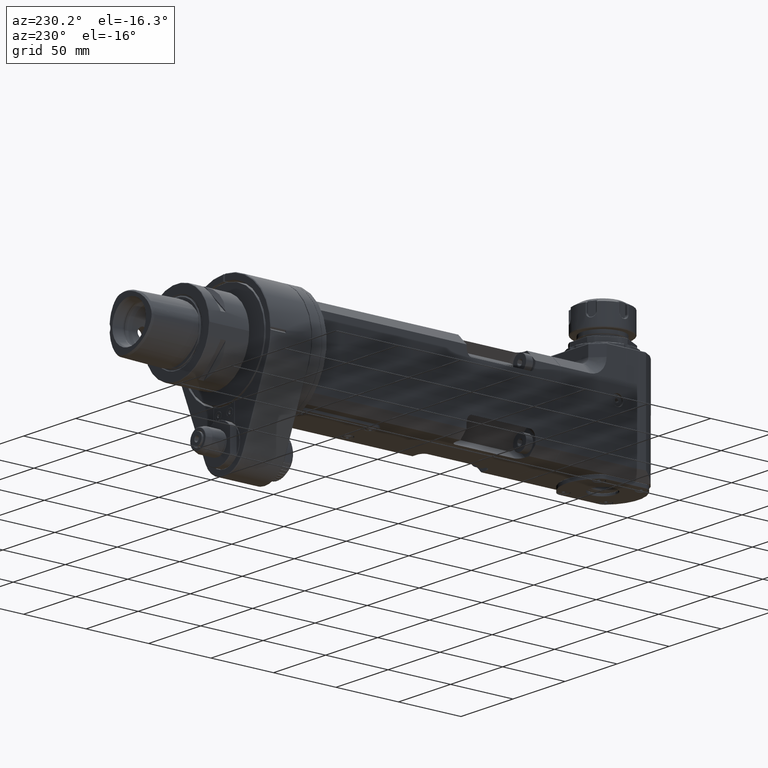
[diagram: clean part render]
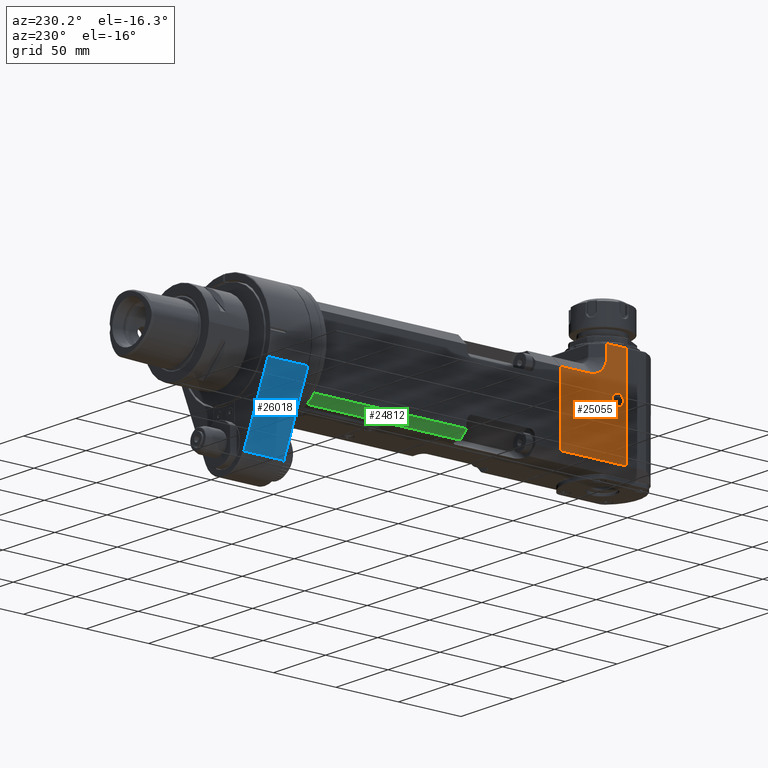
[diagram: same view with three faces highlighted in distinct colors, each labeled with its STEP entity id]
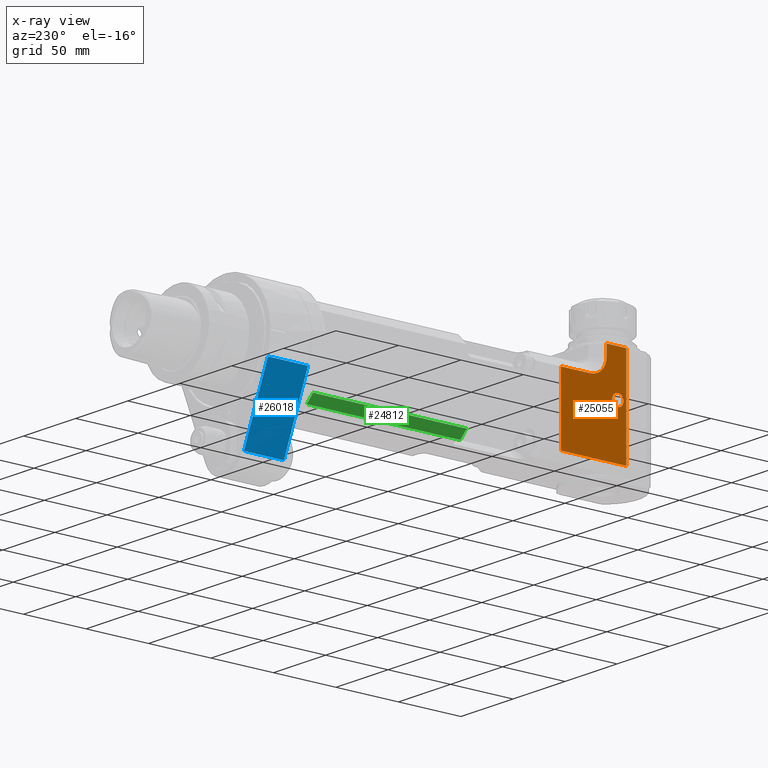
[diagram: x-ray of the same camera — body ghosted, the three highlighted faces saturated]
A machine part, auxiliary view with three faces highlighted in distinct colors.
The next image is the same camera in x-ray (body ghosted, the three faces saturated) — at least one of them is partly hidden behind the body in this view.
Their STEP definitions:

[orange] entity #25055 — the highlighted planar face has unit normal (-1, -0, 0).
#581=PLANE('',#26915);
#1453=FACE_BOUND('',#3898,.T.);
#2335=FACE_OUTER_BOUND('',#3897,.T.);
#3897=EDGE_LOOP('',(#18309,#18310,#18311,#18312,#18313,#18314,#18315));
#3898=EDGE_LOOP('',(#18316));
#5710=CIRCLE('',#26916,13.);
#5711=CIRCLE('',#26917,4.45);
#6726=LINE('',#37259,#8764);
#6906=LINE('',#38947,#8944);
#6920=LINE('',#38977,#8958);
#6921=LINE('',#38979,#8959);
#6922=LINE('',#38981,#8960);
#6923=LINE('',#38984,#8961);
#8764=VECTOR('',#29550,54.);
#8944=VECTOR('',#30344,15.8);
#8958=VECTOR('',#30362,52.3);
#8959=VECTOR('',#30365,75.5);
#8960=VECTOR('',#30366,8.5);
#8961=VECTOR('',#30369,23.5);
#10895=VERTEX_POINT('',#37254);
#10896=VERTEX_POINT('',#37258);
#11133=VERTEX_POINT('',#38944);
#11134=VERTEX_POINT('',#38946);
#11145=VERTEX_POINT('',#38975);
#11146=VERTEX_POINT('',#38980);
#11147=VERTEX_POINT('',#38982);
#11148=VERTEX_POINT('',#38985);
#13488=EDGE_CURVE('',#10895,#10896,#6726,.T.);
#13861=EDGE_CURVE('',#11133,#11134,#6906,.T.);
#13876=EDGE_CURVE('',#10895,#11145,#6920,.T.);
#13877=EDGE_CURVE('',#11145,#11134,#6921,.T.);
#13878=EDGE_CURVE('',#11133,#11146,#6922,.T.);
#13879=EDGE_CURVE('',#11146,#11147,#5710,.T.);
#13880=EDGE_CURVE('',#11147,#10896,#6923,.T.);
#13881=EDGE_CURVE('',#11148,#11148,#5711,.T.);
#18309=ORIENTED_EDGE('',*,*,#13488,.F.);
#18310=ORIENTED_EDGE('',*,*,#13876,.T.);
#18311=ORIENTED_EDGE('',*,*,#13877,.T.);
#18312=ORIENTED_EDGE('',*,*,#13861,.F.);
#18313=ORIENTED_EDGE('',*,*,#13878,.T.);
#18314=ORIENTED_EDGE('',*,*,#13879,.T.);
#18315=ORIENTED_EDGE('',*,*,#13880,.T.);
#18316=ORIENTED_EDGE('',*,*,#13881,.T.);
#25055=ADVANCED_FACE('',(#2335,#1453),#581,.T.);
#26915=AXIS2_PLACEMENT_3D('',#38978,#30363,#30364);
#26916=AXIS2_PLACEMENT_3D('',#38983,#30367,#30368);
#26917=AXIS2_PLACEMENT_3D('',#38986,#30370,#30371);
#29550=DIRECTION('',(0.,0.,1.));
#30344=DIRECTION('',(0.,-1.,0.));
#30362=DIRECTION('',(0.,-1.,0.));
#30363=DIRECTION('center_axis',(-1.,0.,0.));
#30364=DIRECTION('ref_axis',(0.,0.,1.));
#30365=DIRECTION('',(0.,0.,1.));
#30366=DIRECTION('',(0.,0.,-1.));
#30367=DIRECTION('center_axis',(1.,0.,0.));
#30368=DIRECTION('ref_axis',(0.,-1.,0.));
#30369=DIRECTION('',(0.,1.,0.));
#30370=DIRECTION('center_axis',(1.,0.,0.));
#30371=DIRECTION('ref_axis',(0.,1.,0.));
#37254=CARTESIAN_POINT('',(-29.,-212.5,-29.));
#37258=CARTESIAN_POINT('',(-29.,-212.5,25.));
#37259=CARTESIAN_POINT('',(-29.,-212.5,-29.));
#38944=CARTESIAN_POINT('',(-29.,-249.,46.5));
#38946=CARTESIAN_POINT('',(-29.,-264.8,46.5));
#38947=CARTESIAN_POINT('',(-29.,-249.,46.5));
#38975=CARTESIAN_POINT('',(-29.,-264.8,-29.));
#38977=CARTESIAN_POINT('',(-29.,-212.5,-29.));
#38978=CARTESIAN_POINT('Origin',(-29.,-299.,-35.));
#38979=CARTESIAN_POINT('',(-29.,-264.8,-29.));
#38980=CARTESIAN_POINT('',(-29.,-249.,38.));
#38981=CARTESIAN_POINT('',(-29.,-249.,46.5));
#38982=CARTESIAN_POINT('',(-29.,-236.,25.));
#38983=CARTESIAN_POINT('Origin',(-29.,-236.,38.));
#38984=CARTESIAN_POINT('',(-29.,-236.,25.));
#38985=CARTESIAN_POINT('',(-29.,-258.,16.45));
#38986=CARTESIAN_POINT('Origin',(-29.,-258.,12.));

[blue] entity #26018 — the highlighted planar face has unit normal (-0.9231, 0, -0.3846).
#1003=PLANE('',#28479);
#3298=FACE_OUTER_BOUND('',#4964,.T.);
#4964=EDGE_LOOP('',(#23193,#23194,#23195,#23196));
#8192=LINE('',#49689,#10230);
#8202=LINE('',#49711,#10240);
#8203=LINE('',#49713,#10241);
#8204=LINE('',#49714,#10242);
#10230=VECTOR('',#34746,10.);
#10240=VECTOR('',#34772,10.);
#10241=VECTOR('',#34775,31.99969563317);
#10242=VECTOR('',#34776,32.00018741808);
#12579=VERTEX_POINT('',#48196);
#12795=VERTEX_POINT('',#49684);
#12796=VERTEX_POINT('',#49688);
#12800=VERTEX_POINT('',#49707);
#16349=EDGE_CURVE('',#12796,#12795,#8192,.T.);
#16361=EDGE_CURVE('',#12579,#12800,#8202,.T.);
#16362=EDGE_CURVE('',#12800,#12796,#8203,.T.);
#16363=EDGE_CURVE('',#12795,#12579,#8204,.T.);
#23193=ORIENTED_EDGE('',*,*,#16361,.T.);
#23194=ORIENTED_EDGE('',*,*,#16362,.T.);
#23195=ORIENTED_EDGE('',*,*,#16349,.T.);
#23196=ORIENTED_EDGE('',*,*,#16363,.T.);
#26018=ADVANCED_FACE('',(#3298),#1003,.T.);
#28479=AXIS2_PLACEMENT_3D('',#49712,#34773,#34774);
#34746=DIRECTION('',(-0.384615384615406,3.39139971075705E-14,0.923076923076914));
#34772=DIRECTION('',(0.384615384615406,3.39139971075705E-14,-0.923076923076914));
#34773=DIRECTION('center_axis',(-0.923076923076914,0.,-0.384615384615406));
#34774=DIRECTION('ref_axis',(-0.384615384615406,0.,0.923076923076914));
#34775=DIRECTION('',(-5.231420650501E-13,-1.,-2.184939694437E-13));
#34776=DIRECTION('',(5.357904936583E-13,1.,1.99061822447E-13));
#48196=CARTESIAN_POINT('',(-41.5383202524667,32.5003101427439,-17.3076334733757));
#49684=CARTESIAN_POINT('',(-41.5384616394059,0.500113797660992,-17.3076923845356));
#49688=CARTESIAN_POINT('',(-18.4615386000156,0.500150759076893,-72.6923076780329));
#49689=CARTESIAN_POINT('',(-24.2307692307706,0.500000000001736,-58.8461538461574));
#49707=CARTESIAN_POINT('',(-18.4615384204592,32.499849710546,-72.692307603216));
#49711=CARTESIAN_POINT('',(-24.2307692307709,32.4999999999983,-58.8461538461569));
#49712=CARTESIAN_POINT('Origin',(-18.46153846154,0.,-72.69230769231));
#49713=CARTESIAN_POINT('',(-18.46153848688,32.49985434569,-72.69230763089));
#49714=CARTESIAN_POINT('',(-41.53846152592,0.5001217498938,-17.30769233725));

[green] entity #24812 — the highlighted planar face has unit normal (-0.7071, -0, -0.7071).
#448=PLANE('',#26414);
#2092=FACE_OUTER_BOUND('',#3608,.T.);
#3608=EDGE_LOOP('',(#16952,#16953,#16954,#16955));
#6507=LINE('',#35978,#8545);
#6509=LINE('',#35982,#8547);
#6510=LINE('',#35984,#8548);
#6511=LINE('',#35985,#8549);
#8545=VECTOR('',#28947,8.48528137423843);
#8547=VECTOR('',#28951,123.);
#8548=VECTOR('',#28952,8.48528137423843);
#8549=VECTOR('',#28953,123.);
#10585=VERTEX_POINT('',#35973);
#10586=VERTEX_POINT('',#35977);
#10587=VERTEX_POINT('',#35981);
#10588=VERTEX_POINT('',#35983);
#13096=EDGE_CURVE('',#10586,#10585,#6507,.T.);
#13098=EDGE_CURVE('',#10587,#10585,#6509,.T.);
#13099=EDGE_CURVE('',#10587,#10588,#6510,.T.);
#13100=EDGE_CURVE('',#10588,#10586,#6511,.T.);
#16952=ORIENTED_EDGE('',*,*,#13096,.T.);
#16953=ORIENTED_EDGE('',*,*,#13098,.F.);
#16954=ORIENTED_EDGE('',*,*,#13099,.T.);
#16955=ORIENTED_EDGE('',*,*,#13100,.T.);
#24812=ADVANCED_FACE('',(#2092),#448,.T.);
#26414=AXIS2_PLACEMENT_3D('',#35980,#28949,#28950);
#28947=DIRECTION('',(0.707106781186548,0.,-0.707106781186548));
#28949=DIRECTION('center_axis',(-0.707106781186548,0.,-0.707106781186548));
#28950=DIRECTION('ref_axis',(-0.707106781186548,0.,0.707106781186548));
#28951=DIRECTION('',(0.,1.,0.));
#28952=DIRECTION('',(-0.707106781186548,0.,0.707106781186548));
#28953=DIRECTION('',(0.,1.,0.));
#35973=CARTESIAN_POINT('',(-23.,-14.,-35.));
#35977=CARTESIAN_POINT('',(-29.,-14.,-29.));
#35978=CARTESIAN_POINT('',(-29.,-14.,-29.));
#35980=CARTESIAN_POINT('Origin',(-26.,-112.,-32.));
#35981=CARTESIAN_POINT('',(-23.,-137.,-35.));
#35982=CARTESIAN_POINT('',(-23.,-137.,-35.));
#35983=CARTESIAN_POINT('',(-29.,-137.,-29.));
#35984=CARTESIAN_POINT('',(-23.,-137.,-35.));
#35985=CARTESIAN_POINT('',(-29.,-137.,-29.));